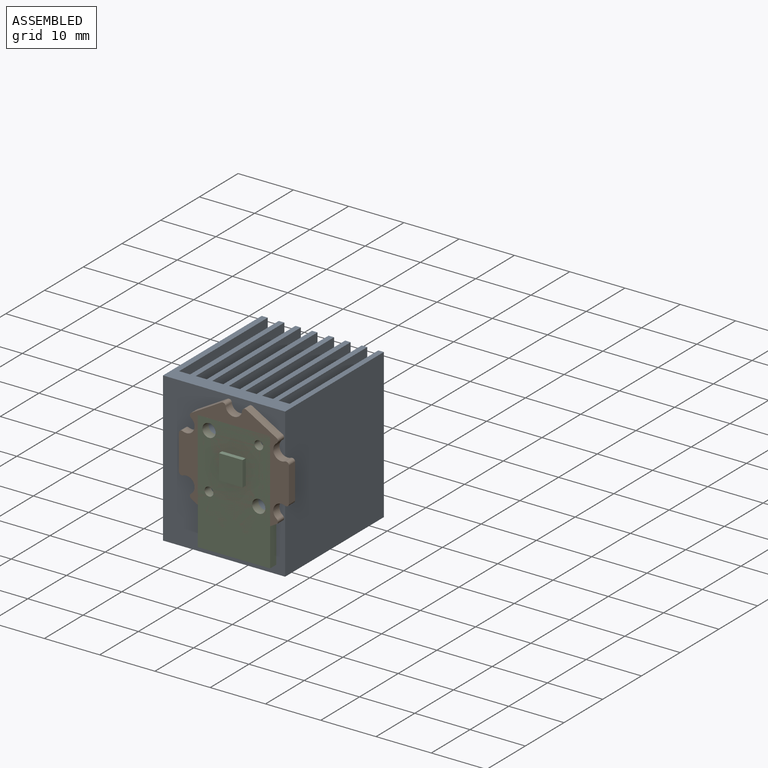
[diagram: assembled view]
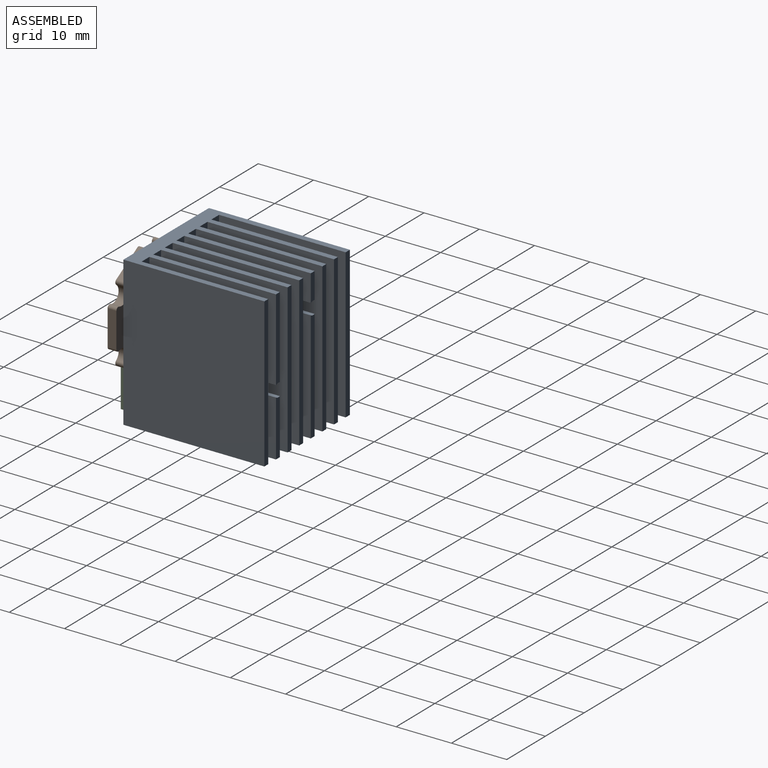
[diagram: assembled view, second angle]
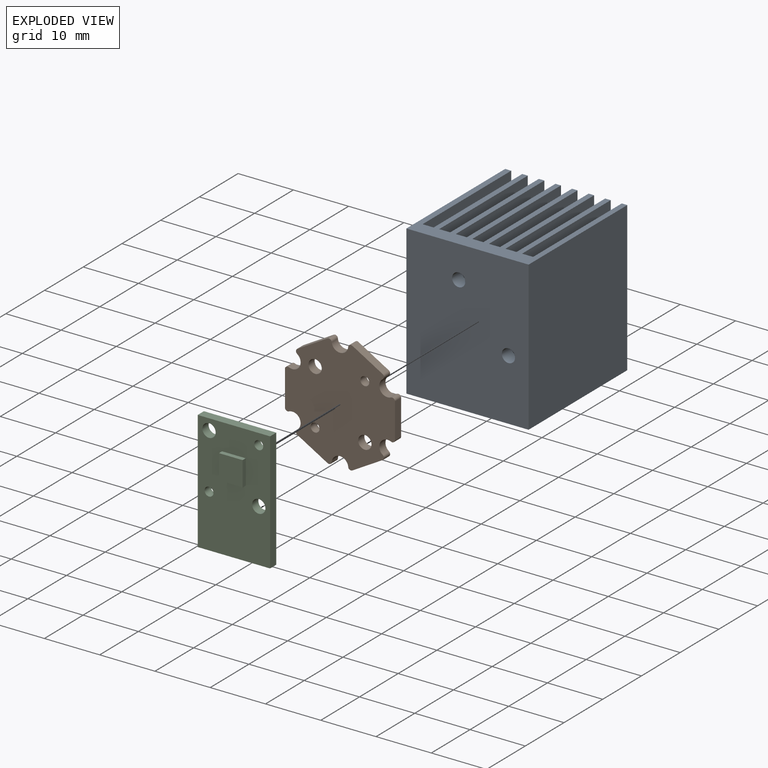
[diagram: exploded view]
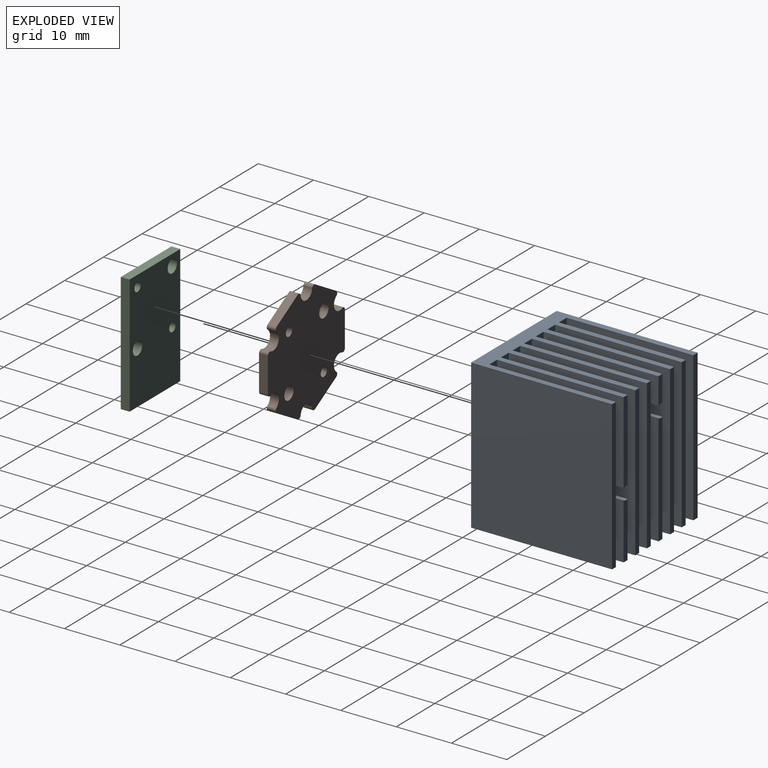
[diagram: exploded view, second angle]
ASSEMBLY  parts=3 mates=2
PART A: 42 faces, bbox 27x25.5x22.1 mm
  f0: plane 25.5x22.1mm, normal (1,0,0), area 243mm2, adj f3,f5,f6,f7,f9,f10,f11,f12
  f1: cylinder r=1.2mm len=25.5mm, axis (0,1,0), area 67.3mm2, adj f7,f8,f15,f25,f26,f28,f29,f31
  f2: cylinder r=1.2mm len=25.5mm, axis (0,1,0), area 67.3mm2, adj f3,f4,f15,f17,f18,f20,f21,f23
  f3: plane 10.12x1mm, normal (0,1,0), area 10mm2, adj f0,f2,f18,f23
  f4: plane 14.86x1mm, normal (0,1,0), area 14.7mm2, adj f2,f13,f17,f21
  f5: plane 27x1mm, normal (0,1,0), area 27mm2, adj f0,f13,f19,f39
  f6: plane 27x1mm, normal (0,1,0), area 27mm2, adj f0,f13,f30,f40
  f7: plane 20.12x1mm, normal (0,1,0), area 20mm2, adj f0,f1,f26,f31
  f8: plane 4.86x1mm, normal (0,1,0), area 4.7mm2, adj f1,f13,f25,f29
  f9: plane 27x1mm, normal (0,1,0), area 27mm2, adj f0,f13,f27,f36
  f10: plane 27x1mm, normal (0,1,0), area 27mm2, adj f0,f13,f33,f37
  f11: plane 27x1.1mm, normal (0,1,0), area 29.7mm2, adj f0,f13,f14,f34
  f12: plane 27x25.5mm, normal (0,0,1), area 688.5mm2, adj f0,f13,f15,f16
  f13: plane 25.5x22.1mm, normal (-1,0,0), area 243mm2, adj f4,f5,f6,f8,f9,f10,f11,f12
  f14: plane 27x25.5mm, normal (0,0,-1), area 688.5mm2, adj f0,f11,f13,f15
  f15: plane 27x22.1mm, normal (0,-1,0), area 587.7mm2, adj f0,f1,f2,f12,f13,f14
  f16: plane 27x1mm, normal (0,1,0), area 27mm2, adj f0,f12,f13,f22
  f17: plane 22.9x14.72mm, normal (0,0,-1), area 337.1mm2, adj f2,f4,f13,f20
  f18: plane 22.9x9.98mm, normal (0,0,-1), area 228.6mm2, adj f0,f2,f3,f20
  f19: plane 27x22.9mm, normal (0,0,1), area 618.3mm2, adj f0,f5,f13,f20
  f20: plane 27x2mm, normal (0,1,0), area 52.6mm2, adj f0,f2,f13,f17,f18,f19
  f21: plane 22.9x14.86mm, normal (0,0,1), area 340.3mm2, adj f2,f4,f13,f24
  f22: plane 27x22.9mm, normal (0,0,-1), area 618.3mm2, adj f0,f13,f16,f24
  f23: plane 22.9x10.12mm, normal (0,0,1), area 231.8mm2, adj f0,f2,f3,f24
  f24: plane 27x2mm, normal (0,1,0), area 53.2mm2, adj f0,f2,f13,f21,f22,f23
  f25: plane 22.9x4.72mm, normal (0,0,-1), area 108.1mm2, adj f1,f8,f13,f28
  f26: plane 22.9x19.98mm, normal (0,0,-1), area 457.6mm2, adj f0,f1,f7,f28
  f27: plane 27x22.9mm, normal (0,0,1), area 618.3mm2, adj f0,f9,f13,f28
  f28: plane 27x2mm, normal (0,1,0), area 52.6mm2, adj f0,f1,f13,f25,f26,f27
  f29: plane 22.9x4.86mm, normal (0,0,1), area 111.3mm2, adj f1,f8,f13,f32
  f30: plane 27x22.9mm, normal (0,0,-1), area 618.3mm2, adj f0,f6,f13,f32
  f31: plane 22.9x20.12mm, normal (0,0,1), area 460.8mm2, adj f0,f1,f7,f32
  f32: plane 27x2mm, normal (0,1,0), area 53.2mm2, adj f0,f1,f13,f29,f30,f31
  f33: plane 27x22.9mm, normal (0,0,-1), area 618.3mm2, adj f0,f10,f13,f35
  f34: plane 27x22.9mm, normal (0,0,1), area 618.3mm2, adj f0,f11,f13,f35
  f35: plane 27x2mm, normal (0,1,0), area 54mm2, adj f0,f13,f33,f34
  f36: plane 27x22.9mm, normal (0,0,-1), area 618.3mm2, adj f0,f9,f13,f38
  f37: plane 27x22.9mm, normal (0,0,1), area 618.3mm2, adj f0,f10,f13,f38
  f38: plane 27x2mm, normal (0,1,0), area 54mm2, adj f0,f13,f36,f37
  f39: plane 27x22.9mm, normal (0,0,-1), area 618.3mm2, adj f0,f5,f13,f41
  f40: plane 27x22.9mm, normal (0,0,1), area 618.3mm2, adj f0,f6,f13,f41
  f41: plane 27x2mm, normal (0,1,0), area 54mm2, adj f0,f13,f39,f40
PART B: 30 faces, bbox 19.9x1.6x20.5 mm
  f0: plane 6.31x1.6mm, normal (1,0,0), area 10.1mm2, adj f1,f26,f28,f29
  f1: cylinder r=0.5mm len=1.6mm, axis (0,1,0), area 1.6mm2, adj f0,f2,f28,f29
  f2: cylinder r=1.5mm len=2.72mm, axis (0,1,0), area 7.1mm2, adj f1,f3,f28,f29
  f3: cylinder r=0.5mm len=1.6mm, axis (0,1,0), area 1.6mm2, adj f2,f4,f28,f29
  f4: plane 5.47x3.16mm, normal (0.5,0,0.87), area 10.1mm2, adj f3,f5,f28,f29
  f5: cylinder r=0.5mm len=1.6mm, axis (0,1,0), area 1.6mm2, adj f4,f6,f28,f29
  f6: cylinder r=1.5mm len=2.99mm, axis (0,1,0), area 7.1mm2, adj f5,f7,f28,f29
  f7: cylinder r=0.5mm len=1.6mm, axis (0,1,0), area 1.6mm2, adj f6,f8,f28,f29
  f8: plane 5.47x3.16mm, normal (-0.5,0,0.87), area 10.1mm2, adj f7,f9,f28,f29
  f9: cylinder r=0.5mm len=1.6mm, axis (0,1,0), area 1.6mm2, adj f8,f10,f28,f29
  f10: cylinder r=1.5mm len=2.72mm, axis (0,1,0), area 7.1mm2, adj f9,f11,f28,f29
  f11: cylinder r=0.5mm len=1.6mm, axis (0,1,0), area 1.6mm2, adj f10,f12,f28,f29
  f12: plane 6.31x1.6mm, normal (-1,0,0), area 10.1mm2, adj f11,f13,f28,f29
  f13: cylinder r=0.5mm len=1.6mm, axis (0,1,0), area 1.6mm2, adj f12,f14,f28,f29
  f14: cylinder r=1.5mm len=2.72mm, axis (0,1,0), area 7.1mm2, adj f13,f15,f28,f29
  f15: cylinder r=0.5mm len=1.6mm, axis (0,1,0), area 1.6mm2, adj f14,f16,f28,f29
  f16: plane 5.47x3.16mm, normal (-0.5,0,-0.87), area 10.1mm2, adj f15,f17,f28,f29
  f17: cylinder r=0.5mm len=1.6mm, axis (0,1,0), area 1.6mm2, adj f16,f18,f28,f29
  f18: cylinder r=1.5mm len=2.99mm, axis (0,1,0), area 7.1mm2, adj f17,f19,f28,f29
  f19: cylinder r=0.5mm len=1.6mm, axis (0,1,0), area 1.6mm2, adj f18,f20,f28,f29
  f20: plane 5.47x3.16mm, normal (0.5,0,-0.87), area 10.1mm2, adj f19,f21,f28,f29
  f21: cylinder r=0.5mm len=1.6mm, axis (0,1,0), area 1.6mm2, adj f20,f22,f28,f29
  f22: cylinder r=1.5mm len=2.72mm, axis (0,1,0), area 7.1mm2, adj f21,f26,f28,f29
  f23: cylinder r=0.8mm len=1.6mm, axis (0,1,0), area 8mm2, adj f28,f29
  f24: cylinder r=1.2mm len=2.4mm, axis (0,1,0), area 12.1mm2, adj f28,f29
  f25: cylinder r=0.8mm len=1.6mm, axis (0,1,0), area 8mm2, adj f28,f29
  f26: cylinder r=0.5mm len=1.6mm, axis (0,1,0), area 1.6mm2, adj f0,f22,f28,f29
  f27: cylinder r=1.2mm len=2.4mm, axis (0,1,0), area 12.1mm2, adj f28,f29
  f28: plane 20.52x19.9mm, normal (0,-1,0), area 286.8mm2, adj f0,f1,f2,f3,f4,f5,f6,f7
  f29: plane 20.52x19.9mm, normal (0,1,0), area 286.8mm2, adj f0,f1,f2,f3,f4,f5,f6,f7
PART C: 15 faces, bbox 21.6x2.4x13.1 mm
  f0: plane 21.6x13.1mm, normal (0,-1,0), area 250.7mm2, adj f1,f2,f3,f4,f5,f6,f7,f8
  f1: plane 13.1x1.6mm, normal (1,0,0), area 21mm2, adj f0,f2,f7,f9
  f2: plane 21.6x1.6mm, normal (0,0,1), area 34.6mm2, adj f0,f1,f3,f9
  f3: plane 13.1x1.6mm, normal (-1,0,0), area 21mm2, adj f0,f2,f7,f9
  f4: cylinder r=1.2mm len=2.4mm, axis (0,1,0), area 12.1mm2, adj f0,f9
  f5: cylinder r=0.8mm len=1.6mm, axis (0,1,0), area 8mm2, adj f0,f9
  f6: cylinder r=1.2mm len=2.4mm, axis (0,1,0), area 12.1mm2, adj f0,f9
  f7: plane 21.6x1.6mm, normal (0,0,-1), area 34.6mm2, adj f0,f1,f3,f9
  f8: cylinder r=0.8mm len=1.6mm, axis (0,1,0), area 8mm2, adj f0,f9
  f9: plane 21.6x13.1mm, normal (0,1,0), area 269.9mm2, adj f1,f2,f3,f4,f5,f6,f7,f8
  f10: plane 4.47x0.8mm, normal (0,0,-1), area 3.6mm2, adj f0,f11,f13,f14
  f11: plane 4.28x0.8mm, normal (1,0,0), area 3.4mm2, adj f0,f10,f12,f14
  f12: plane 4.47x0.8mm, normal (0,0,1), area 3.6mm2, adj f0,f11,f13,f14
  f13: plane 4.28x0.8mm, normal (-1,0,0), area 3.4mm2, adj f0,f10,f12,f14
  f14: plane 4.47x4.28mm, normal (0,-1,0), area 19.1mm2, adj f10,f11,f12,f13
PLACE A rot(axis=(0,1,0),90deg) t=(-3.4,12.5,-2.13)mm
PLACE B t=(-0.5,-13,0.5)mm
PLACE C rot(axis=(0,1,0),90deg) t=(-0.5,-13,-3.3)mm
MATE fastened A.f1 <-> C.f6  axis (0,-1,0) through (-5,-13,5.5)mm
MATE fastened A.f1 <-> B.f27  axis (0,-1,0) through (-5,-13,5.5)mm
